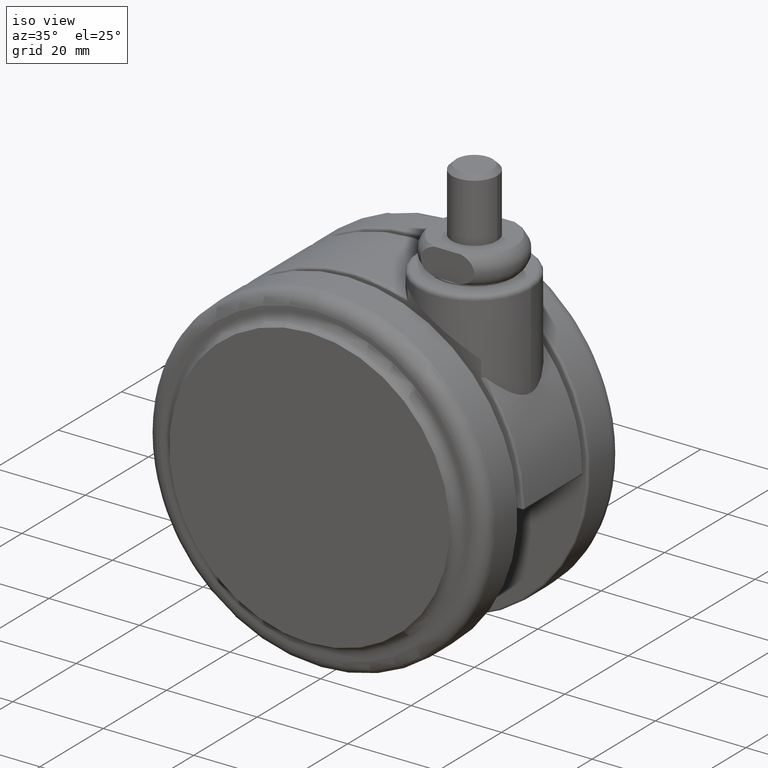
[diagram: clean part render]
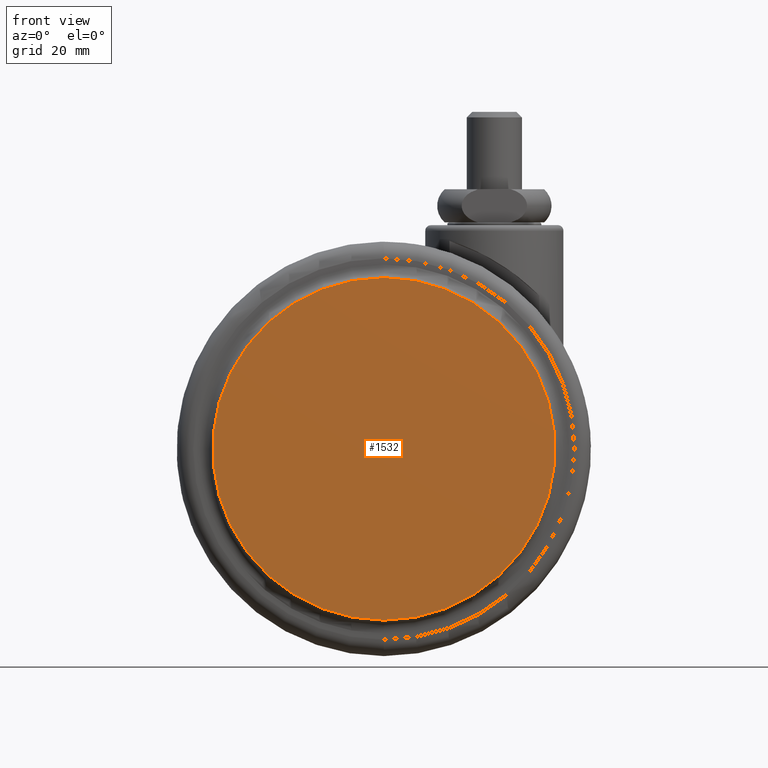
[diagram: tour spotlight — one face highlighted and labeled with its STEP entity id]
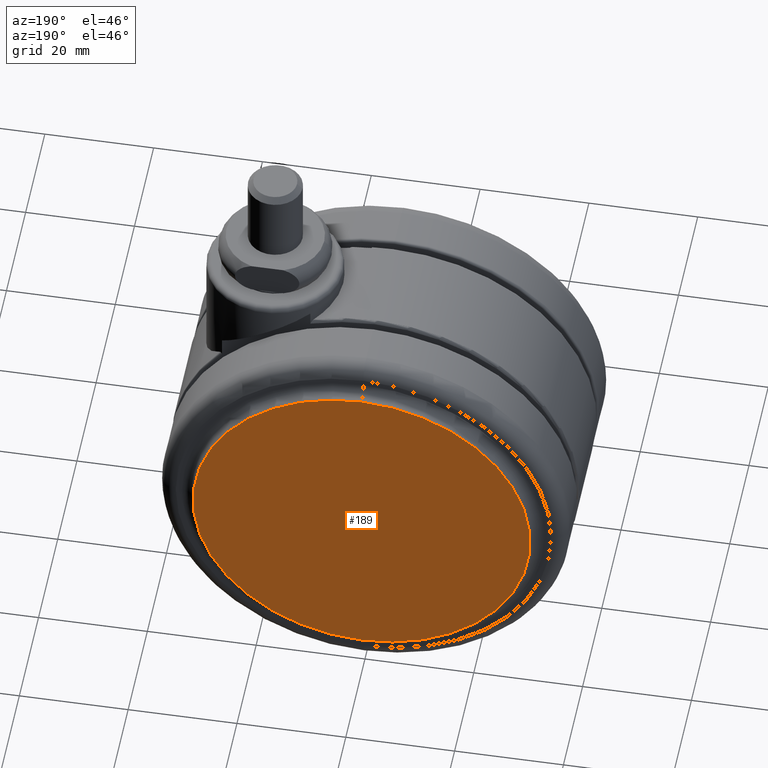
[diagram: tour spotlight — one face highlighted and labeled with its STEP entity id]
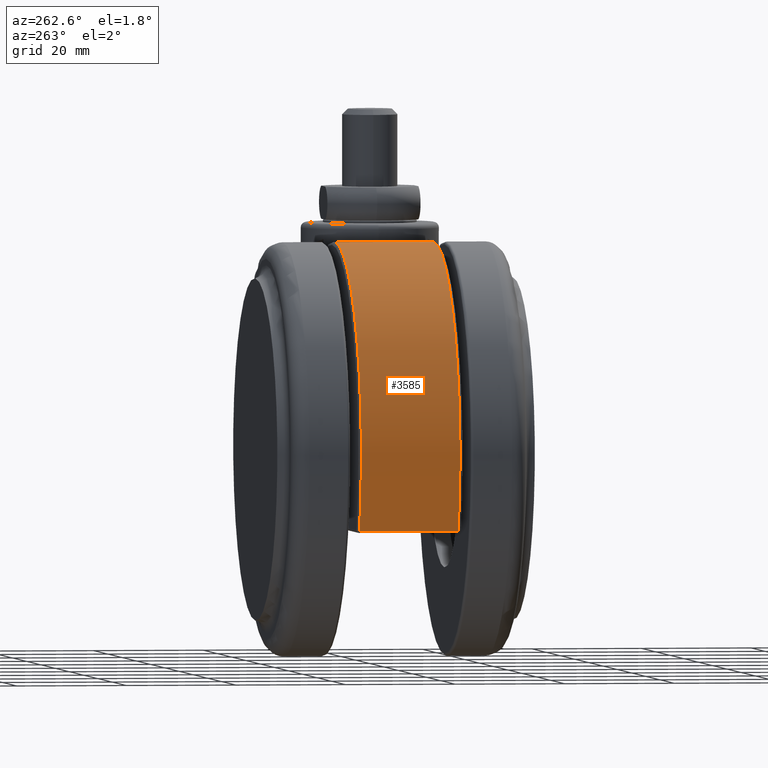
[diagram: tour spotlight — one face highlighted and labeled with its STEP entity id]
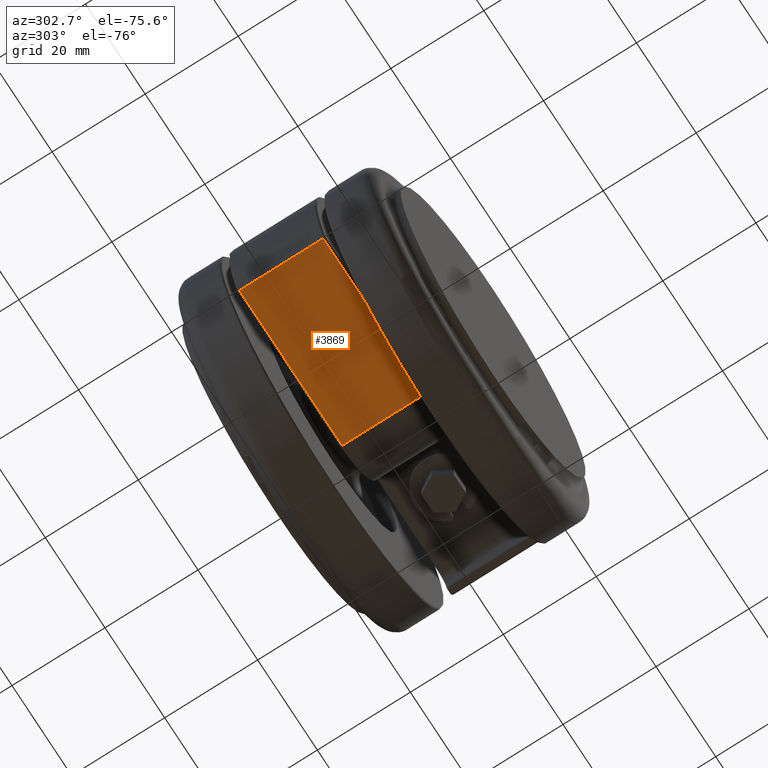
[diagram: tour spotlight — one face highlighted and labeled with its STEP entity id]
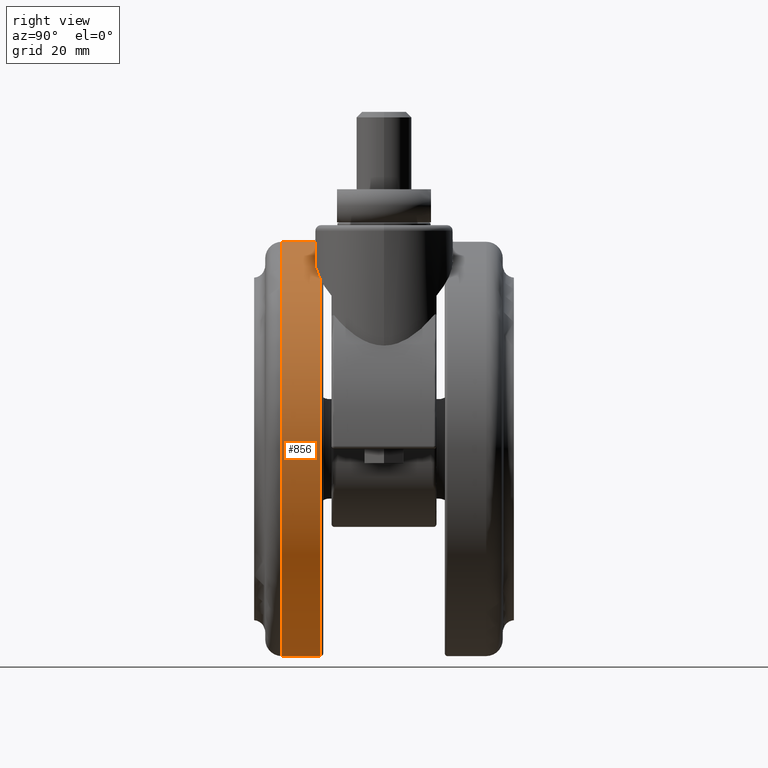
[diagram: tour spotlight — one face highlighted and labeled with its STEP entity id]
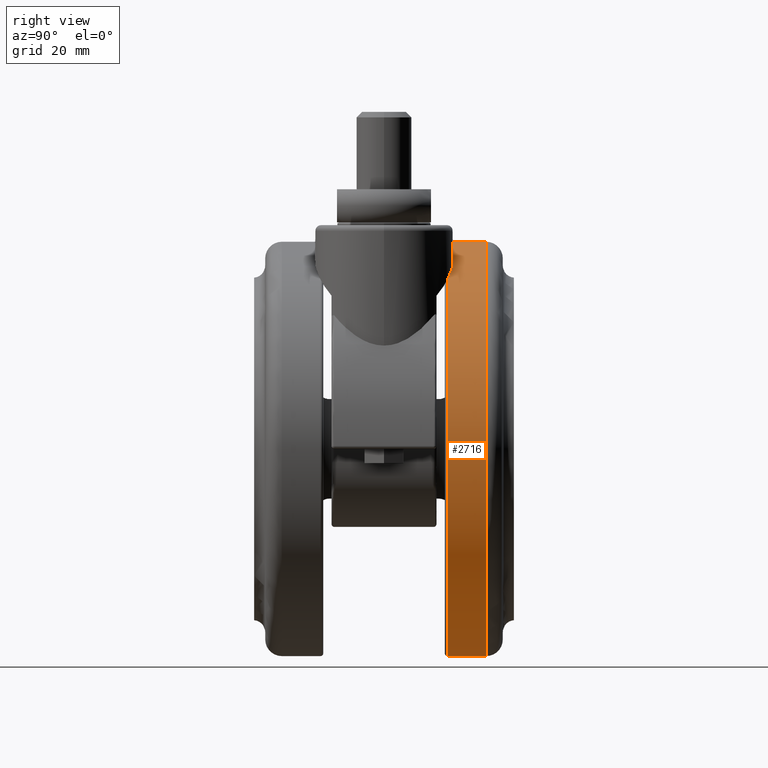
[diagram: tour spotlight — one face highlighted and labeled with its STEP entity id]
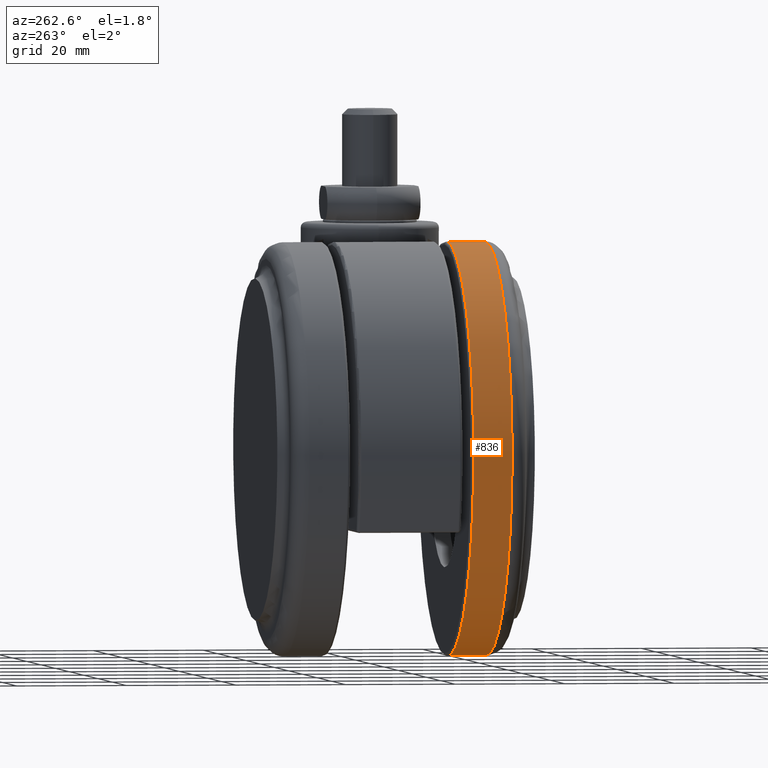
[diagram: tour spotlight — one face highlighted and labeled with its STEP entity id]
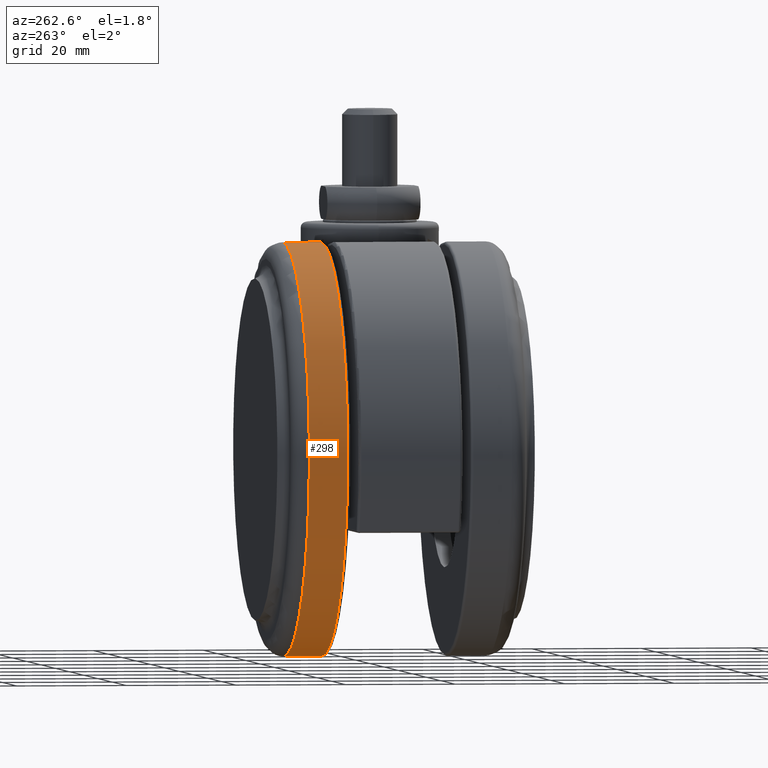
[diagram: tour spotlight — one face highlighted and labeled with its STEP entity id]
A machine part: a face-by-face anatomy tour. The part has 126 B-rep faces; the first image is the clean iso view, then the 8 largest visible faces are spotlighted one at a time (largest first), each with its STEP entity span.

Face 1 — front view, entity #1532. In plain terms, the highlighted planar face has unit normal (0, -1, 0).
Definition (entity closure, byte-faithful):
#211 = CARTESIAN_POINT ( 'NONE',  ( -20.00000000000000000, -23.50000000000000000, -40.50000000000000000 ) ) ;
#340 = EDGE_LOOP ( 'NONE', ( #2201, #2058 ) ) ;
#514 = DIRECTION ( 'NONE',  ( 0.0000000000000000000, 0.0000000000000000000, -1.000000000000000000 ) ) ;
#606 = CARTESIAN_POINT ( 'NONE',  ( -19.99999999999999600, -23.50000000000000000, -9.500000000000001800 ) ) ;
#794 = VERTEX_POINT ( 'NONE', #2821 ) ;
#866 = FACE_OUTER_BOUND ( 'NONE', #340, .T. ) ;
#952 = EDGE_CURVE ( 'NONE', #3472, #794, #2680, .T. ) ;
#1010 = PLANE ( 'NONE',  #2925 ) ;
#1532 = ADVANCED_FACE ( 'NONE', ( #866 ), #1010, .T. ) ;
#1722 = CARTESIAN_POINT ( 'NONE',  ( -20.00000000000000000, -23.50000000000000000, -40.50000000000000000 ) ) ;
#2058 = ORIENTED_EDGE ( 'NONE', *, *, #952, .T. ) ;
#2201 = ORIENTED_EDGE ( 'NONE', *, *, #3654, .T. ) ;
#2357 = DIRECTION ( 'NONE',  ( 0.0000000000000000000, -1.000000000000000000, 0.0000000000000000000 ) ) ;
#2527 = CIRCLE ( 'NONE', #2865, 31.00000000000000700 ) ;
#2680 = CIRCLE ( 'NONE', #3153, 31.00000000000000700 ) ;
#2821 = CARTESIAN_POINT ( 'NONE',  ( -20.00000000000000000, -23.50000000000000000, -71.50000000000001400 ) ) ;
#2865 = AXIS2_PLACEMENT_3D ( 'NONE', #211, #2357, #514 ) ;
#2925 = AXIS2_PLACEMENT_3D ( 'NONE', #1722, #3112, #2932 ) ;
#2932 = DIRECTION ( 'NONE',  ( 0.0000000000000000000, 0.0000000000000000000, -1.000000000000000000 ) ) ;
#3112 = DIRECTION ( 'NONE',  ( 0.0000000000000000000, -1.000000000000000000, 0.0000000000000000000 ) ) ;
#3139 = DIRECTION ( 'NONE',  ( 0.0000000000000000000, -1.000000000000000000, 0.0000000000000000000 ) ) ;
#3153 = AXIS2_PLACEMENT_3D ( 'NONE', #3229, #3139, #3254 ) ;
#3229 = CARTESIAN_POINT ( 'NONE',  ( -20.00000000000000000, -23.50000000000000000, -40.50000000000000000 ) ) ;
#3254 = DIRECTION ( 'NONE',  ( 0.0000000000000000000, 0.0000000000000000000, -1.000000000000000000 ) ) ;
#3472 = VERTEX_POINT ( 'NONE', #606 ) ;
#3654 = EDGE_CURVE ( 'NONE', #794, #3472, #2527, .T. ) ;

Face 2 — auxiliary view, entity #189. In plain terms, the highlighted planar face has unit normal (0, 1, 0).
Definition (entity closure, byte-faithful):
#14 = EDGE_CURVE ( 'NONE', #1044, #90, #3486, .T. ) ;
#19 = AXIS2_PLACEMENT_3D ( 'NONE', #3876, #176, #375 ) ;
#90 = VERTEX_POINT ( 'NONE', #2174 ) ;
#145 = CIRCLE ( 'NONE', #19, 31.00000000000000700 ) ;
#176 = DIRECTION ( 'NONE',  ( -1.582413479254075000E-015, -1.000000000000000000, 0.0000000000000000000 ) ) ;
#189 = ADVANCED_FACE ( 'NONE', ( #3926 ), #2429, .T. ) ;
#375 = DIRECTION ( 'NONE',  ( 0.0000000000000000000, 0.0000000000000000000, -1.000000000000000000 ) ) ;
#519 = EDGE_LOOP ( 'NONE', ( #3767, #3064 ) ) ;
#1044 = VERTEX_POINT ( 'NONE', #3717 ) ;
#1071 = EDGE_CURVE ( 'NONE', #90, #1044, #145, .T. ) ;
#1106 = AXIS2_PLACEMENT_3D ( 'NONE', #3827, #3238, #3016 ) ;
#1117 = CARTESIAN_POINT ( 'NONE',  ( -20.00000000000000000, 23.50000000000000000, -40.50000000000000000 ) ) ;
#2174 = CARTESIAN_POINT ( 'NONE',  ( -20.00000000000000400, 23.50000000000000000, -9.500000000000001800 ) ) ;
#2429 = PLANE ( 'NONE',  #1106 ) ;
#2622 = AXIS2_PLACEMENT_3D ( 'NONE', #1117, #3894, #3870 ) ;
#3016 = DIRECTION ( 'NONE',  ( 0.0000000000000000000, 0.0000000000000000000, -1.000000000000000000 ) ) ;
#3064 = ORIENTED_EDGE ( 'NONE', *, *, #1071, .F. ) ;
#3238 = DIRECTION ( 'NONE',  ( 1.582413479254075000E-015, 1.000000000000000000, 0.0000000000000000000 ) ) ;
#3486 = CIRCLE ( 'NONE', #2622, 31.00000000000000700 ) ;
#3717 = CARTESIAN_POINT ( 'NONE',  ( -20.00000000000000000, 23.50000000000000000, -71.50000000000001400 ) ) ;
#3767 = ORIENTED_EDGE ( 'NONE', *, *, #14, .F. ) ;
#3827 = CARTESIAN_POINT ( 'NONE',  ( -20.00000000000000000, 23.50000000000000000, -40.50000000000000000 ) ) ;
#3870 = DIRECTION ( 'NONE',  ( 0.0000000000000000000, 0.0000000000000000000, -1.000000000000000000 ) ) ;
#3876 = CARTESIAN_POINT ( 'NONE',  ( -20.00000000000000000, 23.50000000000000000, -40.50000000000000000 ) ) ;
#3894 = DIRECTION ( 'NONE',  ( -1.582413479254075000E-015, -1.000000000000000000, 0.0000000000000000000 ) ) ;
#3926 = FACE_OUTER_BOUND ( 'NONE', #519, .T. ) ;

Face 3 — auxiliary view, entity #3585. In plain terms, the highlighted cylindrical surface (partial cylindrical patch) has radius 37.5 mm, axis along (0, -1, 0).
Definition (entity closure, byte-faithful):
#22 = CARTESIAN_POINT ( 'NONE',  ( -9.802904443546696100, -7.800582663888066600, -4.409683149507409400 ) ) ;
#45 = B_SPLINE_CURVE_WITH_KNOTS ( 'NONE', 3,
 ( #1237, #2181, #2422, #2524, #2477, #2684, #3070, #3056, #3562, #3010, #3628, #3657, #3901, #1556, #3353, #1576 ),
 .UNSPECIFIED., .F., .F.,
 ( 4, 2, 2, 2, 2, 2, 2, 4 ),
 ( 0.01083297000393782300, 0.01209086360940814100, 0.01334875721487845800, 0.01586454442581909300, 0.01712243803128940900, 0.01838033163675972500, 0.01963822524223004400, 0.02089611884770036000 ),
 .UNSPECIFIED. ) ;
#66 = VERTEX_POINT ( 'NONE', #252 ) ;
#173 = AXIS2_PLACEMENT_3D ( 'NONE', #3473, #1650, #3771 ) ;
#219 = CYLINDRICAL_SURFACE ( 'NONE', #1445, 37.50000000000000000 ) ;
#251 = CARTESIAN_POINT ( 'NONE',  ( -8.674675786448901200, -8.999999999999809900, -4.751055519666890000 ) ) ;
#252 = CARTESIAN_POINT ( 'NONE',  ( -12.50000000000000000, 2.995251654553703900E-014, -3.757653858252425000 ) ) ;
#336 = CARTESIAN_POINT ( 'NONE',  ( -10.73847770299704000, -6.411853426593876500, -4.161066474243648700 ) ) ;
#385 = VERTEX_POINT ( 'NONE', #1951 ) ;
#469 = ORIENTED_EDGE ( 'NONE', *, *, #2287, .T. ) ;
#577 = ORIENTED_EDGE ( 'NONE', *, *, #778, .T. ) ;
#633 = EDGE_LOOP ( 'NONE', ( #3849, #806, #3414, #3511, #469, #577 ) ) ;
#647 = CARTESIAN_POINT ( 'NONE',  ( -11.32877515779916800, -5.299412595533453000, -4.015916222165394300 ) ) ;
#729 = CARTESIAN_POINT ( 'NONE',  ( -54.86951361419750100, -8.999999999999799300, -54.29735555493609700 ) ) ;
#774 = CARTESIAN_POINT ( 'NONE',  ( -20.00000000000045100, 0.0000000000000000000, -40.50000000000000000 ) ) ;
#778 = EDGE_CURVE ( 'NONE', #951, #3331, #3715, .T. ) ;
#806 = ORIENTED_EDGE ( 'NONE', *, *, #1956, .T. ) ;
#871 = VERTEX_POINT ( 'NONE', #2370 ) ;
#947 = CARTESIAN_POINT ( 'NONE',  ( -11.80282795274265500, -4.137603731906472700, -3.906654837730500200 ) ) ;
#951 = VERTEX_POINT ( 'NONE', #2878 ) ;
#1070 = DIRECTION ( 'NONE',  ( 0.0000000000000000000, -1.000000000000000000, 0.0000000000000000000 ) ) ;
#1237 = CARTESIAN_POINT ( 'NONE',  ( -12.50000000000000000, 2.995251654553703900E-014, -3.757653858252425000 ) ) ;
#1238 = CARTESIAN_POINT ( 'NONE',  ( -8.674675786448901200, -8.999999999999809900, -4.751055519666890000 ) ) ;
#1255 = CARTESIAN_POINT ( 'NONE',  ( -12.16031509086136700, -2.925245578562813500, -3.828527006093505500 ) ) ;
#1305 = AXIS2_PLACEMENT_3D ( 'NONE', #3306, #1492, #3610 ) ;
#1381 = DIRECTION ( 'NONE',  ( 0.0000000000000000000, 0.0000000000000000000, -1.000000000000000000 ) ) ;
#1445 = AXIS2_PLACEMENT_3D ( 'NONE', #774, #1070, #1381 ) ;
#1492 = DIRECTION ( 'NONE',  ( 0.0000000000000000000, -1.000000000000000000, 0.0000000000000000000 ) ) ;
#1556 = CARTESIAN_POINT ( 'NONE',  ( -9.258363189833458400, 8.408577873207479000, -4.570274193610124800 ) ) ;
#1557 = CARTESIAN_POINT ( 'NONE',  ( -12.49999999999999800, -0.8407722689415021400, -3.757653858252426800 ) ) ;
#1576 = CARTESIAN_POINT ( 'NONE',  ( -8.674675786448538900, 9.000000000000230900, -4.751055519667010800 ) ) ;
#1650 = DIRECTION ( 'NONE',  ( 0.0000000000000000000, 1.000000000000000000, 0.0000000000000000000 ) ) ;
#1718 = DIRECTION ( 'NONE',  ( 0.0000000000000000000, 0.0000000000000000000, 1.000000000000000000 ) ) ;
#1882 = EDGE_CURVE ( 'NONE', #385, #2644, #2855, .T. ) ;
#1904 = CIRCLE ( 'NONE', #173, 37.50000000000000000 ) ;
#1938 = FACE_OUTER_BOUND ( 'NONE', #633, .T. ) ;
#1951 = CARTESIAN_POINT ( 'NONE',  ( -54.86951361419750100, 9.000000000000199000, -54.29735555493609700 ) ) ;
#1956 = EDGE_CURVE ( 'NONE', #66, #871, #45, .T. ) ;
#2138 = CARTESIAN_POINT ( 'NONE',  ( -9.267378490791253800, -8.428721800230761100, -4.563286331331251100 ) ) ;
#2171 = CARTESIAN_POINT ( 'NONE',  ( -10.51517581383509300, -6.771638203603449900, -4.218482085273332200 ) ) ;
#2181 = CARTESIAN_POINT ( 'NONE',  ( -12.50000000000000000, 0.4198857714410683100, -3.757653858252427700 ) ) ;
#2226 = AXIS2_PLACEMENT_3D ( 'NONE', #3447, #2265, #1718 ) ;
#2265 = DIRECTION ( 'NONE',  ( 0.0000000000000000000, 1.000000000000000000, 0.0000000000000000000 ) ) ;
#2287 = EDGE_CURVE ( 'NONE', #2644, #951, #1904, .T. ) ;
#2370 = CARTESIAN_POINT ( 'NONE',  ( -8.674675786448538900, 9.000000000000230900, -4.751055519667010800 ) ) ;
#2422 = CARTESIAN_POINT ( 'NONE',  ( -12.47890053855938700, 0.8408547169093227900, -3.761941011588097300 ) ) ;
#2477 = CARTESIAN_POINT ( 'NONE',  ( -12.32874735431087700, 2.104418142397915100, -3.792924973968794700 ) ) ;
#2478 = CARTESIAN_POINT ( 'NONE',  ( -11.14504601772913600, -5.675801001144079400, -4.059861759056297500 ) ) ;
#2524 = CARTESIAN_POINT ( 'NONE',  ( -12.39317029340259800, 1.685029787549746400, -3.779596173792669300 ) ) ;
#2644 = VERTEX_POINT ( 'NONE', #729 ) ;
#2684 = CARTESIAN_POINT ( 'NONE',  ( -12.07499608784259600, 3.339284003571599600, -3.846566198035183500 ) ) ;
#2739 = B_SPLINE_CURVE_WITH_KNOTS ( 'NONE', 3,
 ( #1238, #2138, #22, #2171, #336, #2478, #647, #2778, #947, #3071, #1255, #3374, #1557, #3685 ),
 .UNSPECIFIED., .F., .F.,
 ( 4, 2, 2, 2, 2, 2, 4 ),
 ( 0.0007578292614578130900, 0.003276614447077814200, 0.004536007039887815200, 0.005795399632697815700, 0.007054792225507816200, 0.008314184818317818500, 0.01083297000393782300 ),
 .UNSPECIFIED. ) ;
#2778 = CARTESIAN_POINT ( 'NONE',  ( -11.65766593866017000, -4.530314039475490200, -3.939311114517211700 ) ) ;
#2855 = LINE ( 'NONE', #3877, #3664 ) ;
#2878 = CARTESIAN_POINT ( 'NONE',  ( -20.00000000000045100, -8.999999999999799300, -3.000000000000002700 ) ) ;
#3010 = CARTESIAN_POINT ( 'NONE',  ( -10.73730232612175200, 6.413705260039230400, -4.161370447469451500 ) ) ;
#3056 = CARTESIAN_POINT ( 'NONE',  ( -11.32890675711923300, 5.299343921343998800, -4.015880330838450100 ) ) ;
#3070 = CARTESIAN_POINT ( 'NONE',  ( -11.82515094896099400, 4.138176200578661800, -3.900311104676254200 ) ) ;
#3071 = CARTESIAN_POINT ( 'NONE',  ( -12.05401286481520300, -3.335758711177920300, -3.851291589132261400 ) ) ;
#3299 = DIRECTION ( 'NONE',  ( 0.0000000000000000000, -1.000000000000000000, 0.0000000000000000000 ) ) ;
#3306 = CARTESIAN_POINT ( 'NONE',  ( -20.00000000000045100, 9.000000000000199000, -40.50000000000000000 ) ) ;
#3331 = VERTEX_POINT ( 'NONE', #251 ) ;
#3353 = CARTESIAN_POINT ( 'NONE',  ( -8.972938191872776400, 8.712518925962278600, -4.656565500695855100 ) ) ;
#3371 = EDGE_CURVE ( 'NONE', #871, #385, #3939, .T. ) ;
#3374 = CARTESIAN_POINT ( 'NONE',  ( -12.41604507323763200, -1.677237000265646300, -3.774477651932344200 ) ) ;
#3414 = ORIENTED_EDGE ( 'NONE', *, *, #3371, .T. ) ;
#3447 = CARTESIAN_POINT ( 'NONE',  ( -20.00000000000045100, -8.999999999999799300, -40.50000000000000000 ) ) ;
#3473 = CARTESIAN_POINT ( 'NONE',  ( -20.00000000000045100, -8.999999999999799300, -40.50000000000000000 ) ) ;
#3511 = ORIENTED_EDGE ( 'NONE', *, *, #1882, .T. ) ;
#3562 = CARTESIAN_POINT ( 'NONE',  ( -11.14238452377035500, 5.680892846167517400, -4.060512983454700000 ) ) ;
#3585 = ADVANCED_FACE ( 'NONE', ( #1938 ), #219, .T. ) ;
#3610 = DIRECTION ( 'NONE',  ( 0.0000000000000000000, 0.0000000000000000000, -1.000000000000000000 ) ) ;
#3628 = CARTESIAN_POINT ( 'NONE',  ( -10.51789632378315200, 6.767247206361606300, -4.217783199591902000 ) ) ;
#3657 = CARTESIAN_POINT ( 'NONE',  ( -10.04652675849994200, 7.449099134835352100, -4.344254723362667800 ) ) ;
#3664 = VECTOR ( 'NONE', #3299, 1000.000000000000000 ) ;
#3685 = CARTESIAN_POINT ( 'NONE',  ( -12.50000000000000000, 2.995251654553703900E-014, -3.757653858252425000 ) ) ;
#3715 = CIRCLE ( 'NONE', #2226, 37.50000000000000000 ) ;
#3771 = DIRECTION ( 'NONE',  ( 0.0000000000000000000, 0.0000000000000000000, 1.000000000000000000 ) ) ;
#3849 = ORIENTED_EDGE ( 'NONE', *, *, #3865, .T. ) ;
#3865 = EDGE_CURVE ( 'NONE', #3331, #66, #2739, .T. ) ;
#3877 = CARTESIAN_POINT ( 'NONE',  ( -54.86951361419750100, 0.0000000000000000000, -54.29735555493609700 ) ) ;
#3901 = CARTESIAN_POINT ( 'NONE',  ( -9.794559992498440300, 7.777407367369056200, -4.414310978766519800 ) ) ;
#3939 = CIRCLE ( 'NONE', #1305, 37.50000000000000000 ) ;

Face 4 — auxiliary view, entity #3869. In plain terms, the highlighted planar face has unit normal (0, 0, -1).
Definition (entity closure, byte-faithful):
#5 = ORIENTED_EDGE ( 'NONE', *, *, #1471, .T. ) ;
#80 = DIRECTION ( 'NONE',  ( 0.0000000000000000000, -1.000000000000000000, 0.0000000000000000000 ) ) ;
#169 = LINE ( 'NONE', #789, #3320 ) ;
#249 = CARTESIAN_POINT ( 'NONE',  ( -20.00000000000045100, 9.000000000000230900, -54.61339081420359800 ) ) ;
#352 = DIRECTION ( 'NONE',  ( -1.000000000000000000, 0.0000000000000000000, 0.0000000000000000000 ) ) ;
#428 = CARTESIAN_POINT ( 'NONE',  ( -54.40458676600820100, -8.999999999999799300, -54.61339081420359800 ) ) ;
#505 = FACE_OUTER_BOUND ( 'NONE', #1863, .T. ) ;
#517 = EDGE_CURVE ( 'NONE', #730, #562, #2072, .T. ) ;
#562 = VERTEX_POINT ( 'NONE', #428 ) ;
#630 = LINE ( 'NONE', #992, #3752 ) ;
#719 = ORIENTED_EDGE ( 'NONE', *, *, #2774, .T. ) ;
#730 = VERTEX_POINT ( 'NONE', #2316 ) ;
#789 = CARTESIAN_POINT ( 'NONE',  ( -54.40458676600820100, 9.500000000000170500, -54.61339081420359800 ) ) ;
#958 = LINE ( 'NONE', #2169, #1779 ) ;
#992 = CARTESIAN_POINT ( 'NONE',  ( -20.00000000000045100, 990.5000000000000000, -54.61339081420359800 ) ) ;
#1254 = VECTOR ( 'NONE', #2646, 1000.000000000000000 ) ;
#1348 = EDGE_CURVE ( 'NONE', #2552, #730, #630, .T. ) ;
#1363 = AXIS2_PLACEMENT_3D ( 'NONE', #1875, #2182, #352 ) ;
#1471 = EDGE_CURVE ( 'NONE', #2671, #2552, #958, .T. ) ;
#1633 = DIRECTION ( 'NONE',  ( 1.000000000000000000, 0.0000000000000000000, 0.0000000000000000000 ) ) ;
#1779 = VECTOR ( 'NONE', #1633, 1000.000000000000000 ) ;
#1837 = PLANE ( 'NONE',  #1363 ) ;
#1863 = EDGE_LOOP ( 'NONE', ( #3675, #3757, #719, #5 ) ) ;
#1875 = CARTESIAN_POINT ( 'NONE',  ( -54.74280068914399800, 990.5000000000000000, -54.61339081420359800 ) ) ;
#2072 = LINE ( 'NONE', #3747, #1254 ) ;
#2169 = CARTESIAN_POINT ( 'NONE',  ( -20.00000000000045100, 9.000000000000230900, -54.61339081420359800 ) ) ;
#2182 = DIRECTION ( 'NONE',  ( 0.0000000000000000000, 0.0000000000000000000, -1.000000000000000000 ) ) ;
#2316 = CARTESIAN_POINT ( 'NONE',  ( -20.00000000000045100, -8.999999999999788600, -54.61339081420359800 ) ) ;
#2552 = VERTEX_POINT ( 'NONE', #249 ) ;
#2646 = DIRECTION ( 'NONE',  ( -1.000000000000000000, -0.0000000000000000000, -0.0000000000000000000 ) ) ;
#2671 = VERTEX_POINT ( 'NONE', #3776 ) ;
#2774 = EDGE_CURVE ( 'NONE', #562, #2671, #169, .T. ) ;
#2920 = DIRECTION ( 'NONE',  ( 0.0000000000000000000, 1.000000000000000000, 0.0000000000000000000 ) ) ;
#3320 = VECTOR ( 'NONE', #2920, 1000.000000000000000 ) ;
#3675 = ORIENTED_EDGE ( 'NONE', *, *, #1348, .T. ) ;
#3747 = CARTESIAN_POINT ( 'NONE',  ( -54.74280068914399800, -8.999999999999799300, -54.61339081420359800 ) ) ;
#3752 = VECTOR ( 'NONE', #80, 1000.000000000000000 ) ;
#3757 = ORIENTED_EDGE ( 'NONE', *, *, #517, .T. ) ;
#3776 = CARTESIAN_POINT ( 'NONE',  ( -54.40458676600820100, 9.000000000000230900, -54.61339081420359800 ) ) ;
#3869 = ADVANCED_FACE ( 'NONE', ( #505 ), #1837, .T. ) ;

Face 5 — right view, entity #856. In plain terms, the highlighted cylindrical surface (partial cylindrical patch) has radius 37.5 mm, axis along (0, -1, 0).
Definition (entity closure, byte-faithful):
#168 = CARTESIAN_POINT ( 'NONE',  ( -20.00000000000000000, -18.50000000000000000, -40.50000000000000000 ) ) ;
#196 = AXIS2_PLACEMENT_3D ( 'NONE', #168, #3531, #3280 ) ;
#305 = AXIS2_PLACEMENT_3D ( 'NONE', #1027, #3498, #728 ) ;
#613 = AXIS2_PLACEMENT_3D ( 'NONE', #2788, #2197, #3103 ) ;
#631 = EDGE_LOOP ( 'NONE', ( #1345, #3142, #2009, #3543 ) ) ;
#728 = DIRECTION ( 'NONE',  ( 0.0000000000000000000, 0.0000000000000000000, -1.000000000000000000 ) ) ;
#856 = ADVANCED_FACE ( 'NONE', ( #3431 ), #1833, .T. ) ;
#933 = DIRECTION ( 'NONE',  ( 0.0000000000000000000, -1.000000000000000000, 0.0000000000000000000 ) ) ;
#1027 = CARTESIAN_POINT ( 'NONE',  ( -20.00000000000000000, 0.0000000000000000000, -40.50000000000000000 ) ) ;
#1132 = CARTESIAN_POINT ( 'NONE',  ( -20.00000000000000000, 0.0000000000000000000, -78.00000000000000000 ) ) ;
#1290 = CARTESIAN_POINT ( 'NONE',  ( -19.99999999999999600, -11.50000000000000000, -3.000000000000002700 ) ) ;
#1345 = ORIENTED_EDGE ( 'NONE', *, *, #1667, .T. ) ;
#1636 = EDGE_CURVE ( 'NONE', #2355, #3041, #3616, .T. ) ;
#1667 = EDGE_CURVE ( 'NONE', #1874, #2992, #2001, .T. ) ;
#1833 = CYLINDRICAL_SURFACE ( 'NONE', #305, 37.50000000000000000 ) ;
#1874 = VERTEX_POINT ( 'NONE', #3592 ) ;
#2001 = CIRCLE ( 'NONE', #613, 37.50000000000000000 ) ;
#2009 = ORIENTED_EDGE ( 'NONE', *, *, #1636, .F. ) ;
#2043 = VECTOR ( 'NONE', #933, 1000.000000000000000 ) ;
#2142 = LINE ( 'NONE', #2150, #2043 ) ;
#2150 = CARTESIAN_POINT ( 'NONE',  ( -19.99999999999999600, 0.0000000000000000000, -3.000000000000002700 ) ) ;
#2197 = DIRECTION ( 'NONE',  ( 0.0000000000000000000, -1.000000000000000000, 0.0000000000000000000 ) ) ;
#2355 = VERTEX_POINT ( 'NONE', #2890 ) ;
#2442 = LINE ( 'NONE', #1132, #3943 ) ;
#2788 = CARTESIAN_POINT ( 'NONE',  ( -20.00000000000000000, -11.50000000000000000, -40.50000000000000000 ) ) ;
#2890 = CARTESIAN_POINT ( 'NONE',  ( -20.00000000000000000, -18.50000000000000000, -78.00000000000001400 ) ) ;
#2912 = EDGE_CURVE ( 'NONE', #2992, #3041, #2142, .T. ) ;
#2992 = VERTEX_POINT ( 'NONE', #1290 ) ;
#3041 = VERTEX_POINT ( 'NONE', #3734 ) ;
#3103 = DIRECTION ( 'NONE',  ( 0.0000000000000000000, 0.0000000000000000000, -1.000000000000000000 ) ) ;
#3142 = ORIENTED_EDGE ( 'NONE', *, *, #2912, .T. ) ;
#3280 = DIRECTION ( 'NONE',  ( 0.0000000000000000000, 0.0000000000000000000, -1.000000000000000000 ) ) ;
#3431 = FACE_OUTER_BOUND ( 'NONE', #631, .T. ) ;
#3498 = DIRECTION ( 'NONE',  ( 0.0000000000000000000, -1.000000000000000000, 0.0000000000000000000 ) ) ;
#3531 = DIRECTION ( 'NONE',  ( 0.0000000000000000000, -1.000000000000000000, 0.0000000000000000000 ) ) ;
#3543 = ORIENTED_EDGE ( 'NONE', *, *, #3678, .F. ) ;
#3592 = CARTESIAN_POINT ( 'NONE',  ( -20.00000000000000000, -11.50000000000000000, -78.00000000000000000 ) ) ;
#3616 = CIRCLE ( 'NONE', #196, 37.50000000000000000 ) ;
#3678 = EDGE_CURVE ( 'NONE', #1874, #2355, #2442, .T. ) ;
#3734 = CARTESIAN_POINT ( 'NONE',  ( -19.99999999999999600, -18.50000000000000000, -3.000000000000000400 ) ) ;
#3879 = DIRECTION ( 'NONE',  ( 0.0000000000000000000, -1.000000000000000000, 0.0000000000000000000 ) ) ;
#3943 = VECTOR ( 'NONE', #3879, 1000.000000000000000 ) ;

Face 6 — right view, entity #2716. In plain terms, the highlighted cylindrical surface (partial cylindrical patch) has radius 37.5 mm, axis along (0, 1, 0).
Definition (entity closure, byte-faithful):
#31 = EDGE_CURVE ( 'NONE', #3182, #93, #1060, .T. ) ;
#79 = VECTOR ( 'NONE', #197, 1000.000000000000000 ) ;
#93 = VERTEX_POINT ( 'NONE', #2463 ) ;
#197 = DIRECTION ( 'NONE',  ( 1.582413479254075000E-015, 1.000000000000000000, 0.0000000000000000000 ) ) ;
#259 = VECTOR ( 'NONE', #1477, 1000.000000000000000 ) ;
#374 = FACE_OUTER_BOUND ( 'NONE', #445, .T. ) ;
#445 = EDGE_LOOP ( 'NONE', ( #764, #889, #2864, #1638 ) ) ;
#477 = AXIS2_PLACEMENT_3D ( 'NONE', #2027, #1318, #3547 ) ;
#764 = ORIENTED_EDGE ( 'NONE', *, *, #3653, .F. ) ;
#889 = ORIENTED_EDGE ( 'NONE', *, *, #1472, .F. ) ;
#902 = LINE ( 'NONE', #2338, #79 ) ;
#1060 = LINE ( 'NONE', #2917, #259 ) ;
#1067 = DIRECTION ( 'NONE',  ( 1.582413479254075000E-015, 1.000000000000000000, 0.0000000000000000000 ) ) ;
#1318 = DIRECTION ( 'NONE',  ( -1.582413479254075000E-015, -1.000000000000000000, 0.0000000000000000000 ) ) ;
#1472 = EDGE_CURVE ( 'NONE', #3182, #2870, #1664, .T. ) ;
#1477 = DIRECTION ( 'NONE',  ( 1.582413479254075000E-015, 1.000000000000000000, 0.0000000000000000000 ) ) ;
#1638 = ORIENTED_EDGE ( 'NONE', *, *, #2776, .T. ) ;
#1651 = CARTESIAN_POINT ( 'NONE',  ( -20.00000000000000000, 11.50000000000000000, -78.00000000000000000 ) ) ;
#1664 = CIRCLE ( 'NONE', #477, 37.50000000000000000 ) ;
#1721 = CARTESIAN_POINT ( 'NONE',  ( -20.00000000000000000, 18.50000000000000000, -40.50000000000000000 ) ) ;
#1812 = CIRCLE ( 'NONE', #2368, 37.50000000000000000 ) ;
#1899 = CYLINDRICAL_SURFACE ( 'NONE', #2559, 37.50000000000000000 ) ;
#1982 = DIRECTION ( 'NONE',  ( 0.0000000000000000000, 0.0000000000000000000, -1.000000000000000000 ) ) ;
#2023 = DIRECTION ( 'NONE',  ( 0.0000000000000000000, 0.0000000000000000000, -1.000000000000000000 ) ) ;
#2027 = CARTESIAN_POINT ( 'NONE',  ( -20.00000000000000000, 11.50000000000000000, -40.50000000000000000 ) ) ;
#2071 = CARTESIAN_POINT ( 'NONE',  ( -19.99999999999998200, 11.50000000000000000, -3.000000000000002700 ) ) ;
#2116 = CARTESIAN_POINT ( 'NONE',  ( -20.00000000000000400, 18.50000000000000000, -3.000000000000000400 ) ) ;
#2338 = CARTESIAN_POINT ( 'NONE',  ( -20.00000000000000400, 3.164826958508150900E-014, -3.000000000000002700 ) ) ;
#2368 = AXIS2_PLACEMENT_3D ( 'NONE', #1721, #3830, #2023 ) ;
#2463 = CARTESIAN_POINT ( 'NONE',  ( -20.00000000000000000, 18.50000000000000000, -78.00000000000001400 ) ) ;
#2559 = AXIS2_PLACEMENT_3D ( 'NONE', #3200, #1067, #1982 ) ;
#2716 = ADVANCED_FACE ( 'NONE', ( #374 ), #1899, .T. ) ;
#2776 = EDGE_CURVE ( 'NONE', #93, #3792, #1812, .T. ) ;
#2864 = ORIENTED_EDGE ( 'NONE', *, *, #31, .T. ) ;
#2870 = VERTEX_POINT ( 'NONE', #2071 ) ;
#2917 = CARTESIAN_POINT ( 'NONE',  ( -20.00000000000000000, 3.164826958508150300E-014, -78.00000000000000000 ) ) ;
#3182 = VERTEX_POINT ( 'NONE', #1651 ) ;
#3200 = CARTESIAN_POINT ( 'NONE',  ( -20.00000000000000000, 3.164826958508150300E-014, -40.50000000000000000 ) ) ;
#3547 = DIRECTION ( 'NONE',  ( 0.0000000000000000000, 0.0000000000000000000, -1.000000000000000000 ) ) ;
#3653 = EDGE_CURVE ( 'NONE', #2870, #3792, #902, .T. ) ;
#3792 = VERTEX_POINT ( 'NONE', #2116 ) ;
#3830 = DIRECTION ( 'NONE',  ( -1.582413479254075000E-015, -1.000000000000000000, 0.0000000000000000000 ) ) ;

Face 7 — auxiliary view, entity #836. In plain terms, the highlighted cylindrical surface (partial cylindrical patch) has radius 37.5 mm, axis along (0, -1, 0).
Definition (entity closure, byte-faithful):
#65 = EDGE_CURVE ( 'NONE', #2992, #1874, #3390, .T. ) ;
#623 = DIRECTION ( 'NONE',  ( 0.0000000000000000000, -1.000000000000000000, 0.0000000000000000000 ) ) ;
#836 = ADVANCED_FACE ( 'NONE', ( #2824 ), #2730, .T. ) ;
#933 = DIRECTION ( 'NONE',  ( 0.0000000000000000000, -1.000000000000000000, 0.0000000000000000000 ) ) ;
#1132 = CARTESIAN_POINT ( 'NONE',  ( -20.00000000000000000, 0.0000000000000000000, -78.00000000000000000 ) ) ;
#1290 = CARTESIAN_POINT ( 'NONE',  ( -19.99999999999999600, -11.50000000000000000, -3.000000000000002700 ) ) ;
#1874 = VERTEX_POINT ( 'NONE', #3592 ) ;
#1891 = DIRECTION ( 'NONE',  ( 0.0000000000000000000, -1.000000000000000000, 0.0000000000000000000 ) ) ;
#1939 = CARTESIAN_POINT ( 'NONE',  ( -20.00000000000000000, 0.0000000000000000000, -40.50000000000000000 ) ) ;
#1957 = ORIENTED_EDGE ( 'NONE', *, *, #3495, .F. ) ;
#2020 = DIRECTION ( 'NONE',  ( 0.0000000000000000000, -1.000000000000000000, 0.0000000000000000000 ) ) ;
#2043 = VECTOR ( 'NONE', #933, 1000.000000000000000 ) ;
#2136 = CIRCLE ( 'NONE', #2538, 37.50000000000000000 ) ;
#2142 = LINE ( 'NONE', #2150, #2043 ) ;
#2145 = DIRECTION ( 'NONE',  ( 0.0000000000000000000, 0.0000000000000000000, -1.000000000000000000 ) ) ;
#2150 = CARTESIAN_POINT ( 'NONE',  ( -19.99999999999999600, 0.0000000000000000000, -3.000000000000002700 ) ) ;
#2355 = VERTEX_POINT ( 'NONE', #2890 ) ;
#2364 = CARTESIAN_POINT ( 'NONE',  ( -20.00000000000000000, -11.50000000000000000, -40.50000000000000000 ) ) ;
#2442 = LINE ( 'NONE', #1132, #3943 ) ;
#2461 = CARTESIAN_POINT ( 'NONE',  ( -20.00000000000000000, -18.50000000000000000, -40.50000000000000000 ) ) ;
#2480 = ORIENTED_EDGE ( 'NONE', *, *, #2912, .F. ) ;
#2538 = AXIS2_PLACEMENT_3D ( 'NONE', #2461, #623, #2748 ) ;
#2730 = CYLINDRICAL_SURFACE ( 'NONE', #3636, 37.50000000000000000 ) ;
#2748 = DIRECTION ( 'NONE',  ( 0.0000000000000000000, 0.0000000000000000000, -1.000000000000000000 ) ) ;
#2824 = FACE_OUTER_BOUND ( 'NONE', #3904, .T. ) ;
#2890 = CARTESIAN_POINT ( 'NONE',  ( -20.00000000000000000, -18.50000000000000000, -78.00000000000001400 ) ) ;
#2912 = EDGE_CURVE ( 'NONE', #2992, #3041, #2142, .T. ) ;
#2992 = VERTEX_POINT ( 'NONE', #1290 ) ;
#3022 = AXIS2_PLACEMENT_3D ( 'NONE', #2364, #2020, #2145 ) ;
#3041 = VERTEX_POINT ( 'NONE', #3734 ) ;
#3367 = ORIENTED_EDGE ( 'NONE', *, *, #3678, .T. ) ;
#3390 = CIRCLE ( 'NONE', #3022, 37.50000000000000000 ) ;
#3495 = EDGE_CURVE ( 'NONE', #3041, #2355, #2136, .T. ) ;
#3532 = DIRECTION ( 'NONE',  ( 0.0000000000000000000, 0.0000000000000000000, -1.000000000000000000 ) ) ;
#3592 = CARTESIAN_POINT ( 'NONE',  ( -20.00000000000000000, -11.50000000000000000, -78.00000000000000000 ) ) ;
#3636 = AXIS2_PLACEMENT_3D ( 'NONE', #1939, #1891, #3532 ) ;
#3678 = EDGE_CURVE ( 'NONE', #1874, #2355, #2442, .T. ) ;
#3727 = ORIENTED_EDGE ( 'NONE', *, *, #65, .T. ) ;
#3734 = CARTESIAN_POINT ( 'NONE',  ( -19.99999999999999600, -18.50000000000000000, -3.000000000000000400 ) ) ;
#3879 = DIRECTION ( 'NONE',  ( 0.0000000000000000000, -1.000000000000000000, 0.0000000000000000000 ) ) ;
#3904 = EDGE_LOOP ( 'NONE', ( #2480, #3727, #3367, #1957 ) ) ;
#3943 = VECTOR ( 'NONE', #3879, 1000.000000000000000 ) ;

Face 8 — auxiliary view, entity #298. In plain terms, the highlighted cylindrical surface (partial cylindrical patch) has radius 37.5 mm, axis along (0, 1, 0).
Definition (entity closure, byte-faithful):
#31 = EDGE_CURVE ( 'NONE', #3182, #93, #1060, .T. ) ;
#79 = VECTOR ( 'NONE', #197, 1000.000000000000000 ) ;
#93 = VERTEX_POINT ( 'NONE', #2463 ) ;
#197 = DIRECTION ( 'NONE',  ( 1.582413479254075000E-015, 1.000000000000000000, 0.0000000000000000000 ) ) ;
#259 = VECTOR ( 'NONE', #1477, 1000.000000000000000 ) ;
#298 = ADVANCED_FACE ( 'NONE', ( #1103 ), #2642, .T. ) ;
#384 = ORIENTED_EDGE ( 'NONE', *, *, #1562, .F. ) ;
#525 = CARTESIAN_POINT ( 'NONE',  ( -20.00000000000000000, 3.164826958508150300E-014, -40.50000000000000000 ) ) ;
#804 = ORIENTED_EDGE ( 'NONE', *, *, #3653, .T. ) ;
#902 = LINE ( 'NONE', #2338, #79 ) ;
#1060 = LINE ( 'NONE', #2917, #259 ) ;
#1103 = FACE_OUTER_BOUND ( 'NONE', #1758, .T. ) ;
#1140 = CIRCLE ( 'NONE', #3598, 37.50000000000000000 ) ;
#1265 = CARTESIAN_POINT ( 'NONE',  ( -20.00000000000000000, 11.50000000000000000, -40.50000000000000000 ) ) ;
#1311 = ORIENTED_EDGE ( 'NONE', *, *, #1955, .T. ) ;
#1477 = DIRECTION ( 'NONE',  ( 1.582413479254075000E-015, 1.000000000000000000, 0.0000000000000000000 ) ) ;
#1562 = EDGE_CURVE ( 'NONE', #2870, #3182, #3797, .T. ) ;
#1651 = CARTESIAN_POINT ( 'NONE',  ( -20.00000000000000000, 11.50000000000000000, -78.00000000000000000 ) ) ;
#1737 = DIRECTION ( 'NONE',  ( -1.582413479254075000E-015, -1.000000000000000000, 0.0000000000000000000 ) ) ;
#1758 = EDGE_LOOP ( 'NONE', ( #384, #804, #1311, #2922 ) ) ;
#1955 = EDGE_CURVE ( 'NONE', #3792, #93, #1140, .T. ) ;
#2031 = DIRECTION ( 'NONE',  ( 0.0000000000000000000, 0.0000000000000000000, -1.000000000000000000 ) ) ;
#2071 = CARTESIAN_POINT ( 'NONE',  ( -19.99999999999998200, 11.50000000000000000, -3.000000000000002700 ) ) ;
#2116 = CARTESIAN_POINT ( 'NONE',  ( -20.00000000000000400, 18.50000000000000000, -3.000000000000000400 ) ) ;
#2210 = CARTESIAN_POINT ( 'NONE',  ( -20.00000000000000000, 18.50000000000000000, -40.50000000000000000 ) ) ;
#2221 = DIRECTION ( 'NONE',  ( -1.582413479254075000E-015, -1.000000000000000000, 0.0000000000000000000 ) ) ;
#2338 = CARTESIAN_POINT ( 'NONE',  ( -20.00000000000000400, 3.164826958508150900E-014, -3.000000000000002700 ) ) ;
#2463 = CARTESIAN_POINT ( 'NONE',  ( -20.00000000000000000, 18.50000000000000000, -78.00000000000001400 ) ) ;
#2642 = CYLINDRICAL_SURFACE ( 'NONE', #3171, 37.50000000000000000 ) ;
#2703 = DIRECTION ( 'NONE',  ( 0.0000000000000000000, 0.0000000000000000000, -1.000000000000000000 ) ) ;
#2870 = VERTEX_POINT ( 'NONE', #2071 ) ;
#2917 = CARTESIAN_POINT ( 'NONE',  ( -20.00000000000000000, 3.164826958508150300E-014, -78.00000000000000000 ) ) ;
#2922 = ORIENTED_EDGE ( 'NONE', *, *, #31, .F. ) ;
#2982 = DIRECTION ( 'NONE',  ( 0.0000000000000000000, 0.0000000000000000000, -1.000000000000000000 ) ) ;
#3129 = AXIS2_PLACEMENT_3D ( 'NONE', #1265, #1737, #2031 ) ;
#3171 = AXIS2_PLACEMENT_3D ( 'NONE', #525, #3933, #2703 ) ;
#3182 = VERTEX_POINT ( 'NONE', #1651 ) ;
#3598 = AXIS2_PLACEMENT_3D ( 'NONE', #2210, #2221, #2982 ) ;
#3653 = EDGE_CURVE ( 'NONE', #2870, #3792, #902, .T. ) ;
#3792 = VERTEX_POINT ( 'NONE', #2116 ) ;
#3797 = CIRCLE ( 'NONE', #3129, 37.50000000000000000 ) ;
#3933 = DIRECTION ( 'NONE',  ( 1.582413479254075000E-015, 1.000000000000000000, 0.0000000000000000000 ) ) ;